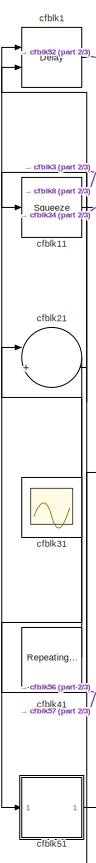
[diagram: root canvas - part 1/3, left side, full height]
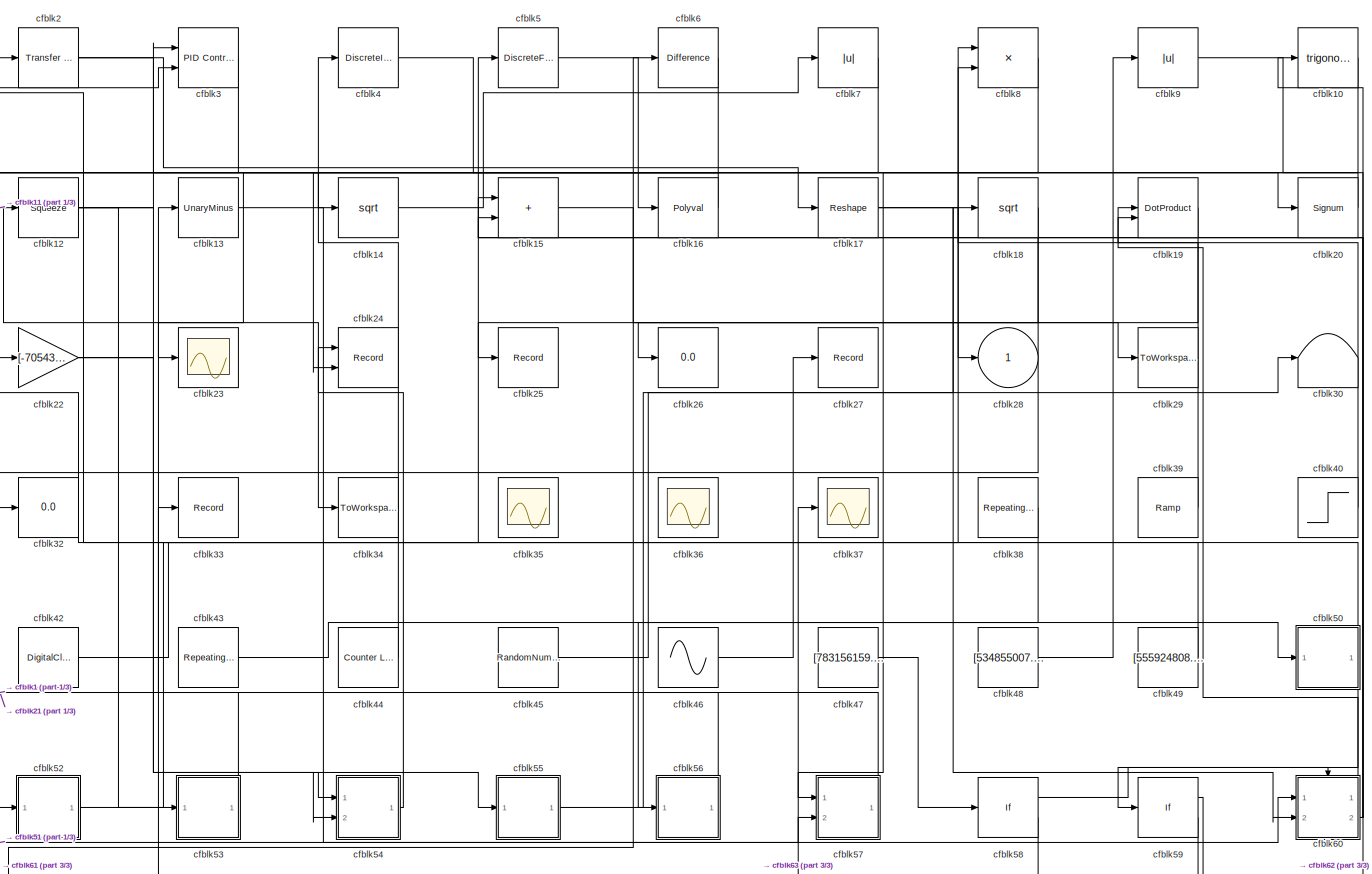
[diagram: root canvas - part 2/3, most of the canvas]
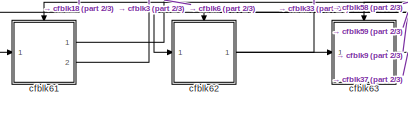
[diagram: root canvas - part 3/3, bottom left region]
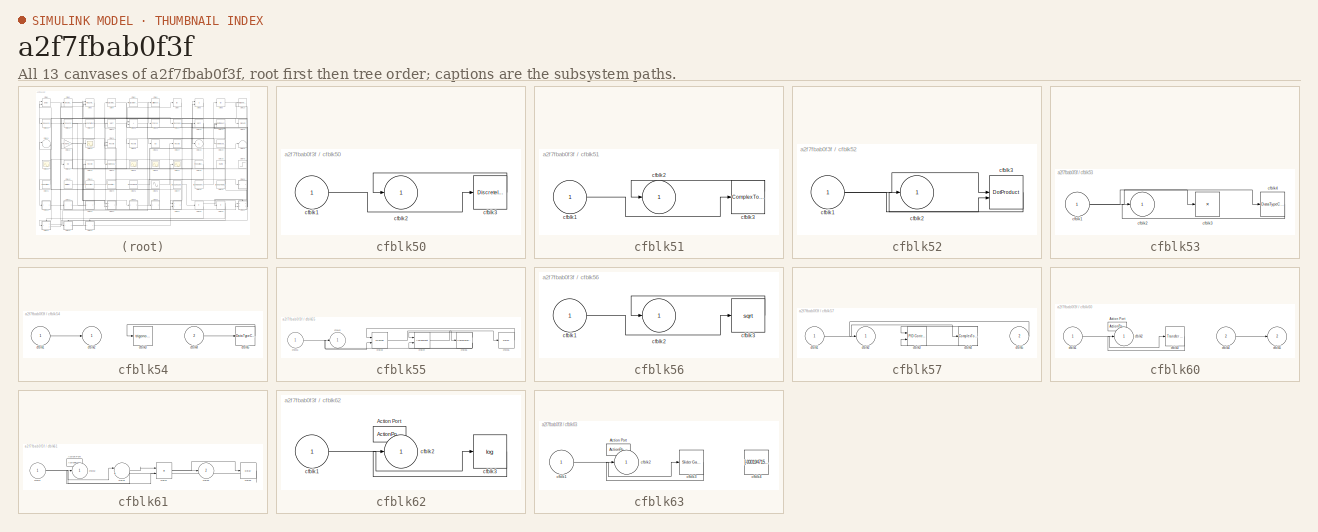
[diagram: thumbnail index - all 13 canvases of the model, root first then tree order]
MODEL slx_a2f7fbab0f3f
KIND model
CONFIG AbsTol = auto
CONFIG EnableMultiTasking = off
CONFIG FixedStep = auto
CONFIG MaxStep = auto
CONFIG MinStep = auto
CONFIG RelTol = 1e-3
CONFIG SampleTimeConstraint = Unconstrained
CONFIG SolverName = VariableStepAuto
CONFIG StartTime = 0.0
CONFIG StopTime = 10.0
BLOCK [Delay] cfblk1
  InputPortMap = u0,e6
  Ports = [2, 1]
  SampleTime = 1
  ShowEnablePort = on
BLOCK [Trigonometry] cfblk10
  Ports = [1, 1]
BLOCK [Squeeze] cfblk11
BLOCK [Squeeze] cfblk12
BLOCK [UnaryMinus] cfblk13
BLOCK [Sqrt] cfblk14
BLOCK [Sum] cfblk15
  IconShape = rectangular
  Ports = [2, 1]
BLOCK [Polyval] cfblk16
  Coefs = [ +2.081618890e-019, -1.441693666e-014, +4.719686976e-010, -8.536869453e-006, +1.621573104e-001, -8.087801117e+001 ]
BLOCK [Reshape] cfblk17
  Ports = [1, 1]
BLOCK [Sqrt] cfblk18
BLOCK [DotProduct] cfblk19
  OutDataTypeStr = Inherit: Inherit via internal rule
BLOCK [Reference] cfblk2  REF=simulink/Discrete/Transfer Fcn
First Order
  Ports = [1, 1]
  SourceBlock = simulink/Discrete/Transfer Fcn\nFirst Order
  SourceProductBaseCode = SL
  SourceType = First Order Transfer Fcn
BLOCK [Signum] cfblk20
BLOCK [Sum] cfblk21
  Inputs = |++
  Ports = [2, 1]
BLOCK [Gain] cfblk22
  Gain = [-705432811.874125]
BLOCK [Scope] cfblk23
  Floating = off
  NumInputPorts = 1
  Ports = [1]
BLOCK [Record] cfblk24
  CompatibilityTag = XY
  FileSettingsInternal = {"entries":[{"content":{"excelSettings":{"content":{},"type":"Streamout.ExcelSettings"}},"type":"Streamout.FileSettingStorage","uuid":"0968c0db-1fa3-4f0a-aacd-8ae34c3a5b80"}],"packageUris":["http://schema.mathworks.com/mf0/streamout_blocks/R2020a"],"version":"1.0"}
  Layout = [1 1]
  Ports = [2]
  SignalsInternal = {"entries":[{"content":{"signals":[{"content":{"blockPath":["sampleModel224/cfblk24"],"channel":[],"dimensions":[1],"domain":"sampleModel224/cfblk24","lineColor":"#a2142f","plots":[1],"port":1,"sid":[""],"signalID":8759,"signalName":"cfblk54"},"type":"RecordBlkView.Signal","uuid":"a4d3cbb6-0309-4320-8d50-c3976eb98d51"},{"content":{"blockPath":["sampleModel224/cfblk24"],"channel":[],"dimensions":[1...<+382ch>
  VisualizationBindings = {"xyplotplugin":{"info":[{"series":[{"bindingParametersList":[{"parameter":"X-Axis","signalID":8759,"signalName":"cfblk54"},{"parameter":"Y-Axis","signalID":8763,"signalName":"cfblk6"}],"seriesID":60867}],"subplotID":1}]}}
BLOCK [Record] cfblk25
  FileSettingsInternal = {"entries":[{"content":{"excelSettings":{"content":{},"type":"Streamout.ExcelSettings"}},"type":"Streamout.FileSettingStorage","uuid":"0aa8934f-be60-4735-8082-48bce9a20687"}],"packageUris":["http://schema.mathworks.com/mf0/streamout_blocks/R2020a"],"version":"1.0"}
  Ports = [1]
  SignalsInternal = {"entries":[{"content":{"signals":[{"content":{"blockPath":["sampleModel224/cfblk25"],"channel":[],"dimensions":[1],"domain":"sampleModel224/cfblk25","lineColor":"#fe330a","plots":[1],"port":1,"sid":[""],"signalID":8767,"signalName":"cfblk18"},"type":"RecordBlkView.Signal","uuid":"a8bd2416-9138-4e99-963b-57c0d02e6113"}]},"type":"RecordBlkView.InputSignals","uuid":"f9da2f49-248b-4e77-ae0a-7d65e4f23...<+97ch>
  VisualizationBindings = {"sparklinesplugin":{"info":[{"bindingParametersList":[],"subplotID":1}]}}
BLOCK [Display] cfblk26
  Decimation = 1
  Ports = [1]
BLOCK [Record] cfblk27
  FileSettingsInternal = {"entries":[{"content":{"excelSettings":{"content":{},"type":"Streamout.ExcelSettings"}},"type":"Streamout.FileSettingStorage","uuid":"5f30f1f0-4e6b-4ba0-954f-21b71f33f610"}],"packageUris":["http://schema.mathworks.com/mf0/streamout_blocks/R2020a"],"version":"1.0"}
  Ports = [1]
  SignalsInternal = {"entries":[{"content":{"signals":[{"content":{"blockPath":["sampleModel224/cfblk27"],"channel":[],"dimensions":[1],"domain":"sampleModel224/cfblk27","lineColor":"#0072bd","plots":[1],"port":1,"sid":[""],"signalID":8775,"signalName":"cfblk46"},"type":"RecordBlkView.Signal","uuid":"447f7f74-c4a4-4b24-942c-05c346fa458f"}]},"type":"RecordBlkView.InputSignals","uuid":"b31ef5df-42b3-47df-b1e2-32819990f...<+97ch>
  VisualizationBindings = {"sparklinesplugin":{"info":[{"bindingParametersList":[],"subplotID":1}]}}
BLOCK [Outport] cfblk28
BLOCK [ToWorkspace] cfblk29
  FixptAsFi = on
  MaxDataPoints = inf
  Ports = [1]
  SampleTime = -1
  SaveFormat = Timeseries
  VariableName = csskive
BLOCK [Reference] cfblk3  REF=slpidlib/PID Controller (2DOF)
  Ports = [2, 1]
  SourceBlock = slpidlib/PID Controller (2DOF)
  SourceProductBaseCode = SL
  SourceType = PID 2dof
BLOCK [Terminator] cfblk30
BLOCK [Scope] cfblk31
  Floating = on
  NumInputPorts = 1
  Ports = []
BLOCK [Display] cfblk32
  Decimation = 1
  Ports = [1]
BLOCK [Record] cfblk33
  FileSettingsInternal = {"entries":[{"content":{"excelSettings":{"content":{},"type":"Streamout.ExcelSettings"}},"type":"Streamout.FileSettingStorage","uuid":"2954e0a4-90f8-43c2-bfc2-4ab379535ace"}],"packageUris":["http://schema.mathworks.com/mf0/streamout_blocks/R2020a"],"version":"1.0"}
  Ports = [1]
  SignalsInternal = {"entries":[{"content":{"signals":[{"content":{"blockPath":["sampleModel224/cfblk33"],"channel":[],"dimensions":[1],"domain":"sampleModel224/cfblk33","lineColor":"#22b573","plots":[1],"port":1,"sid":[""],"signalID":8771,"signalName":"cfblk62"},"type":"RecordBlkView.Signal","uuid":"98cd9e28-d603-4f50-b55e-cbc66abd51e6"}]},"type":"RecordBlkView.InputSignals","uuid":"e9c50f4e-9611-412f-80bc-b1d533291...<+97ch>
  VisualizationBindings = {"sparklinesplugin":{"info":[{"bindingParametersList":[],"subplotID":1}]}}
BLOCK [ToWorkspace] cfblk34
  FixptAsFi = on
  MaxDataPoints = inf
  Ports = [1]
  SampleTime = -1
  SaveFormat = Timeseries
  VariableName = mathokq
BLOCK [Scope] cfblk35
  Floating = on
  NumInputPorts = 1
  Ports = []
BLOCK [Scope] cfblk36
  Floating = on
  NumInputPorts = 1
  Ports = []
BLOCK [Scope] cfblk37
  Floating = off
  NumInputPorts = 1
  Ports = [1]
BLOCK [Reference] cfblk38  REF=simulink/Sources/Repeating
Sequence
Stair
  Ports = [0, 1]
  SourceBlock = simulink/Sources/Repeating\nSequence\nStair
  SourceProductBaseCode = SL
  SourceType = Repeating Sequence Stair
BLOCK [Reference] cfblk39  REF=simulink/Sources/Ramp
  Ports = [0, 1]
  SourceBlock = simulink/Sources/Ramp
  SourceProductBaseCode = SL
  SourceType = Ramp
BLOCK [DiscreteIntegrator] cfblk4
  ICPrevOutput = DiscIntNeverNeededParam
  ICPrevScaledInput = DiscIntNeverNeededParam
  InitialConditionSetting = Auto
  Ports = [1, 1]
BLOCK [Step] cfblk40
  After = [-103228999.230112]
  Before = [-721966633.103638]
  SampleTime = 0
  Time = [44.000000]
BLOCK [Reference] cfblk41  REF=simulink/Sources/Repeating
Sequence
  Ports = [0, 1]
  SourceBlock = simulink/Sources/Repeating\nSequence
  SourceProductBaseCode = SL
  SourceType = Repeating table
BLOCK [DigitalClock] cfblk42
BLOCK [Reference] cfblk43  REF=simulink/Sources/Repeating
Sequence
Stair
  Ports = [0, 1]
  SourceBlock = simulink/Sources/Repeating\nSequence\nStair
  SourceProductBaseCode = SL
  SourceType = Repeating Sequence Stair
BLOCK [Reference] cfblk44  REF=simulink/Sources/Counter
Limited
  Ports = [0, 1]
  SourceBlock = simulink/Sources/Counter\nLimited
  SourceProductBaseCode = SL
  SourceType = Counter Limited
BLOCK [RandomNumber] cfblk45
  Mean = [52058.896865]
  SampleTime = 0.1
  Seed = [599492420.000000]
  Variance = [58465.831986]
BLOCK [Sin] cfblk46
  Amplitude = [459928168.947315]
  Bias = [24873979.933032]
  Ports = [0, 1]
  SampleTime = 0
BLOCK [Constant] cfblk47
  SampleTime = 1
  Value = [783156159.565623]
BLOCK [Constant] cfblk48
  SampleTime = 1
  Value = [534855007.663547]
BLOCK [Constant] cfblk49
  SampleTime = 1
  Value = [555924808.391842]
BLOCK [DiscreteFilter] cfblk5
  InputPortMap = u0
  Ports = [1, 1]
  SampleTime = 1
BLOCK [SubSystem] cfblk50
  Ports = [1, 1]
  RequestExecContextInheritance = off
BLOCK [Inport] cfblk50/cfblk1
BLOCK [Outport] cfblk50/cfblk2
BLOCK [DiscreteIntegrator] cfblk50/cfblk3
  ICPrevOutput = DiscIntNeverNeededParam
  ICPrevScaledInput = DiscIntNeverNeededParam
  InitialConditionSetting = Auto
  Ports = [1, 1]
BLOCK [SubSystem] cfblk51
  Ports = [1, 1]
  RequestExecContextInheritance = off
BLOCK [Inport] cfblk51/cfblk1
BLOCK [Outport] cfblk51/cfblk2
BLOCK [ComplexToRealImag] cfblk51/cfblk3
  Ports = [1, 2]
BLOCK [SubSystem] cfblk52
  Ports = [1, 1]
  RequestExecContextInheritance = off
BLOCK [Inport] cfblk52/cfblk1
BLOCK [Outport] cfblk52/cfblk2
BLOCK [DotProduct] cfblk52/cfblk3
  OutDataTypeStr = Inherit: Inherit via internal rule
BLOCK [SubSystem] cfblk53
  Ports = [1, 1]
  RequestExecContextInheritance = off
BLOCK [Inport] cfblk53/cfblk1
BLOCK [Outport] cfblk53/cfblk2
BLOCK [Product] cfblk53/cfblk3
  Inputs = *
  Ports = [1, 1]
BLOCK [DataTypeConversion] cfblk53/cfblk4
  RndMeth = Floor
  SaturateOnIntegerOverflow = off
BLOCK [SubSystem] cfblk54
  Ports = [2, 1]
  RequestExecContextInheritance = off
BLOCK [Inport] cfblk54/cfblk1
BLOCK [Outport] cfblk54/cfblk2
BLOCK [Trigonometry] cfblk54/cfblk3
  Ports = [1, 1]
BLOCK [Inport] cfblk54/cfblk4
  Port = 2
BLOCK [DataTypeConversion] cfblk54/cfblk5
  RndMeth = Floor
  SaturateOnIntegerOverflow = off
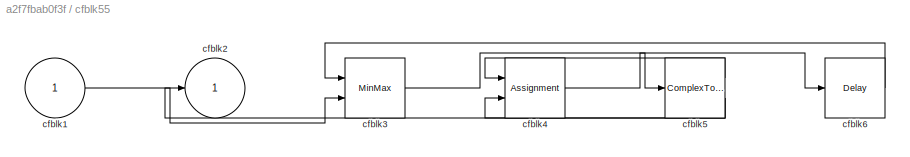
BLOCK [SubSystem] cfblk55
  Ports = [1, 1]
  RequestExecContextInheritance = off
BLOCK [Inport] cfblk55/cfblk1
BLOCK [Outport] cfblk55/cfblk2
BLOCK [MinMax] cfblk55/cfblk3
  Inputs = 2
  Ports = [2, 1]
BLOCK [Assignment] cfblk55/cfblk4
  DiagnosticForDimensions = Warning
  IndexOptions = Index vector (dialog)
  Indices = 1
  OutputSizes = 1
  Ports = [2, 1]
BLOCK [ComplexToMagnitudeAngle] cfblk55/cfblk5
  Ports = [1, 2]
BLOCK [Delay] cfblk55/cfblk6
  InputPortMap = u0
  Ports = [1, 1]
  SampleTime = 1
BLOCK [SubSystem] cfblk56
  Ports = [1, 1]
  RequestExecContextInheritance = off
BLOCK [Inport] cfblk56/cfblk1
BLOCK [Outport] cfblk56/cfblk2
BLOCK [Sqrt] cfblk56/cfblk3
BLOCK [SubSystem] cfblk57
  Ports = [2, 1]
  RequestExecContextInheritance = off
BLOCK [Inport] cfblk57/cfblk1
BLOCK [Outport] cfblk57/cfblk2
BLOCK [Reference] cfblk57/cfblk3  REF=slpidlib/PID Controller (2DOF)
  Ports = [2, 1]
  SourceBlock = slpidlib/PID Controller (2DOF)
  SourceProductBaseCode = SL
  SourceType = PID 2dof
BLOCK [ComplexToRealImag] cfblk57/cfblk4
  Ports = [1, 2]
BLOCK [Inport] cfblk57/cfblk5
  Port = 2
BLOCK [If] cfblk58
  IfExpression = u1 >= 0
  Ports = [1, 2]
  SampleTime = 1
BLOCK [If] cfblk59
  IfExpression = u1 >= 0
  Ports = [1, 2]
  SampleTime = 1
BLOCK [Reference] cfblk6  REF=simulink/Discrete/Difference
  Ports = [1, 1]
  SourceBlock = simulink/Discrete/Difference
  SourceProductBaseCode = SL
  SourceType = Difference
BLOCK [SubSystem] cfblk60
  Ports = [2, 2, 0, 0, 0, 0, 0, 1]
  RequestExecContextInheritance = off
  TreatAsAtomicUnit = on
BLOCK [ActionPort] cfblk60/Action Port
  ActionPortLabel = if(u1 >= 0)
BLOCK [Inport] cfblk60/cfblk1
BLOCK [Outport] cfblk60/cfblk2
BLOCK [Reference] cfblk60/cfblk3  REF=simulink/Discrete/Transfer Fcn
First Order
  Ports = [1, 1]
  SourceBlock = simulink/Discrete/Transfer Fcn\nFirst Order
  SourceProductBaseCode = SL
  SourceType = First Order Transfer Fcn
BLOCK [Inport] cfblk60/cfblk4
  Port = 2
BLOCK [Outport] cfblk60/cfblk5
  Port = 2
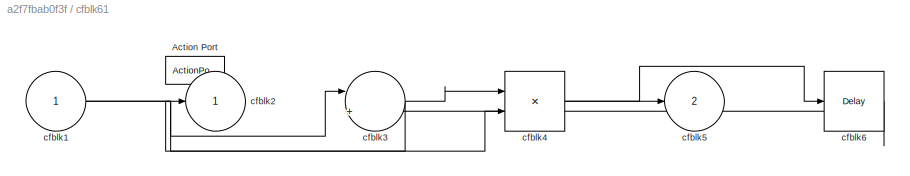
BLOCK [SubSystem] cfblk61
  Ports = [1, 2, 0, 0, 0, 0, 0, 1]
  RequestExecContextInheritance = off
  TreatAsAtomicUnit = on
BLOCK [ActionPort] cfblk61/Action Port
  ActionPortLabel = else
BLOCK [Inport] cfblk61/cfblk1
BLOCK [Outport] cfblk61/cfblk2
BLOCK [Sum] cfblk61/cfblk3
  Inputs = |++
  Ports = [2, 1]
BLOCK [Product] cfblk61/cfblk4
  Inputs = **
  Ports = [2, 1]
BLOCK [Outport] cfblk61/cfblk5
  Port = 2
BLOCK [Delay] cfblk61/cfblk6
  InputPortMap = u0
  Ports = [1, 1]
BLOCK [SubSystem] cfblk62
  Ports = [1, 1, 0, 0, 0, 0, 0, 1]
  RequestExecContextInheritance = off
  TreatAsAtomicUnit = on
BLOCK [ActionPort] cfblk62/Action Port
  ActionPortLabel = if(u1 >= 0)
BLOCK [Inport] cfblk62/cfblk1
BLOCK [Outport] cfblk62/cfblk2
BLOCK [Math] cfblk62/cfblk3
  Operator = log
  Ports = [1, 1]
BLOCK [SubSystem] cfblk63
  Ports = [1, 1, 0, 0, 0, 0, 0, 1]
  RequestExecContextInheritance = off
  TreatAsAtomicUnit = on
BLOCK [ActionPort] cfblk63/Action Port
  ActionPortLabel = else
BLOCK [Inport] cfblk63/cfblk1
BLOCK [Outport] cfblk63/cfblk2
BLOCK [Reference] cfblk63/cfblk3  REF=simulink/Math
Operations/Slider
Gain
  Ports = [1, 1]
  SourceBlock = simulink/Math\nOperations/Slider\nGain
  SourceProductBaseCode = SL
  SourceType = Slider Gain
BLOCK [Constant] cfblk63/cfblk4
  SampleTime = 1
  Value = [-930194715.074561]
BLOCK [Abs] cfblk7
  SaturateOnIntegerOverflow = off
BLOCK [Product] cfblk8
  Ports = [2, 1]
BLOCK [Abs] cfblk9
  SaturateOnIntegerOverflow = off
LINE cfblk10:1 -> cfblk57:1
LINE cfblk11:1 -> cfblk34:1
NET cfblk12:1 -> cfblk3:1, cfblk53:1, cfblk54:2
LINE cfblk13:1 -> cfblk60:1
LINE cfblk14:1 -> cfblk7:1
LINE cfblk15:1 -> cfblk29:1
LINE cfblk16:1 -> cfblk32:1
NET cfblk17:1 -> cfblk28:1, cfblk60:2
NET cfblk18:1 -> cfblk25:1, cfblk61:1
LINE cfblk19:1 -> cfblk26:1
LINE cfblk1:1 -> cfblk52:1
LINE cfblk20:1 -> cfblk12:1
LINE cfblk21:1 -> cfblk51:1
NET cfblk22:1 -> cfblk54:1, cfblk55:1
NET cfblk2:1 -> cfblk14:1, cfblk17:1
LINE cfblk38:1 -> cfblk56:1
LINE cfblk39:1 -> cfblk8:2
LINE cfblk3:1 -> cfblk21:2
LINE cfblk40:1 -> cfblk19:1
LINE cfblk41:1 -> cfblk1:1
LINE cfblk42:1 -> cfblk8:1
LINE cfblk43:1 -> cfblk50:1
LINE cfblk44:1 -> cfblk4:1
LINE cfblk45:1 -> cfblk18:1
LINE cfblk46:1 -> cfblk27:1
LINE cfblk47:1 -> cfblk58:1
LINE cfblk48:1 -> cfblk9:1
LINE cfblk49:1 -> cfblk22:1
LINE cfblk4:1 -> cfblk20:1
LINE cfblk50/cfblk1:1 -> cfblk50/cfblk3:1
LINE cfblk50/cfblk3:1 -> cfblk50/cfblk2:1
NET cfblk50:1 -> cfblk2:1, cfblk59:1
LINE cfblk51/cfblk1:1 -> cfblk51/cfblk3:1
LINE cfblk51/cfblk3:1 -> cfblk51/cfblk2:1
LINE cfblk51:1 -> cfblk57:2
NET cfblk52/cfblk1:1 -> cfblk52/cfblk3:1, cfblk52/cfblk3:2
LINE cfblk52/cfblk3:1 -> cfblk52/cfblk2:1
LINE cfblk52:1 -> cfblk5:1
NET cfblk53/cfblk1:1 -> cfblk53/cfblk3:1, cfblk53/cfblk4:1
LINE cfblk53/cfblk4:1 -> cfblk53/cfblk2:1
LINE cfblk53:1 -> cfblk13:1
LINE cfblk54/cfblk1:1 -> cfblk54/cfblk2:1
LINE cfblk54/cfblk4:1 -> cfblk54/cfblk5:1
LINE cfblk54/cfblk5:1 -> cfblk54/cfblk3:1
LINE cfblk54:1 -> cfblk24:1
LINE cfblk55/cfblk1:1 -> cfblk55/cfblk3:2
LINE cfblk55/cfblk3:1 -> cfblk55/cfblk5:1
LINE cfblk55/cfblk4:1 -> cfblk55/cfblk6:1
LINE cfblk55/cfblk5:1 -> cfblk55/cfblk4:1
NET cfblk55/cfblk5:2 -> cfblk55/cfblk2:1, cfblk55/cfblk4:2
LINE cfblk55/cfblk6:1 -> cfblk55/cfblk3:1
LINE cfblk55:1 -> cfblk30:1
LINE cfblk56/cfblk1:1 -> cfblk56/cfblk3:1
LINE cfblk56/cfblk3:1 -> cfblk56/cfblk2:1
LINE cfblk56:1 -> cfblk21:1
LINE cfblk57/cfblk1:1 -> cfblk57/cfblk4:1
LINE cfblk57/cfblk4:1 -> cfblk57/cfblk3:1
LINE cfblk57/cfblk4:2 -> cfblk57/cfblk3:2
LINE cfblk57/cfblk5:1 -> cfblk57/cfblk2:1
LINE cfblk57:1 -> cfblk1:2
LINE cfblk58:1 -> cfblk60:ifaction
LINE cfblk58:2 -> cfblk61:ifaction
LINE cfblk59:1 -> cfblk62:ifaction
LINE cfblk59:2 -> cfblk63:ifaction
LINE cfblk5:1 -> cfblk16:1
LINE cfblk60/cfblk1:1 -> cfblk60/cfblk3:1
LINE cfblk60/cfblk3:1 -> cfblk60/cfblk2:1
LINE cfblk60/cfblk4:1 -> cfblk60/cfblk5:1
LINE cfblk60:1 -> cfblk19:2
NET cfblk60:2 -> cfblk10:1, cfblk15:1, cfblk15:2
NET cfblk61/cfblk1:1 -> cfblk61/cfblk3:1, cfblk61/cfblk4:2
NET cfblk61/cfblk3:1 -> cfblk61/cfblk2:1, cfblk61/cfblk4:1
NET cfblk61/cfblk4:1 -> cfblk61/cfblk5:1, cfblk61/cfblk6:1
LINE cfblk61/cfblk6:1 -> cfblk61/cfblk3:2
LINE cfblk61:1 -> cfblk6:1
LINE cfblk61:2 -> cfblk3:2
LINE cfblk62/cfblk1:1 -> cfblk62/cfblk3:1
LINE cfblk62/cfblk3:1 -> cfblk62/cfblk2:1
NET cfblk62:1 -> cfblk33:1, cfblk63:1
LINE cfblk63/cfblk1:1 -> cfblk63/cfblk3:1
LINE cfblk63/cfblk3:1 -> cfblk63/cfblk2:1
LINE cfblk63:1 -> cfblk37:1
LINE cfblk6:1 -> cfblk24:2
LINE cfblk7:1 -> cfblk23:1
LINE cfblk8:1 -> cfblk11:1
LINE cfblk9:1 -> cfblk62:1
note: NET lines group one-source signal fan-out (src -> all destinations, sorted); 1:1 wires keep LINE
